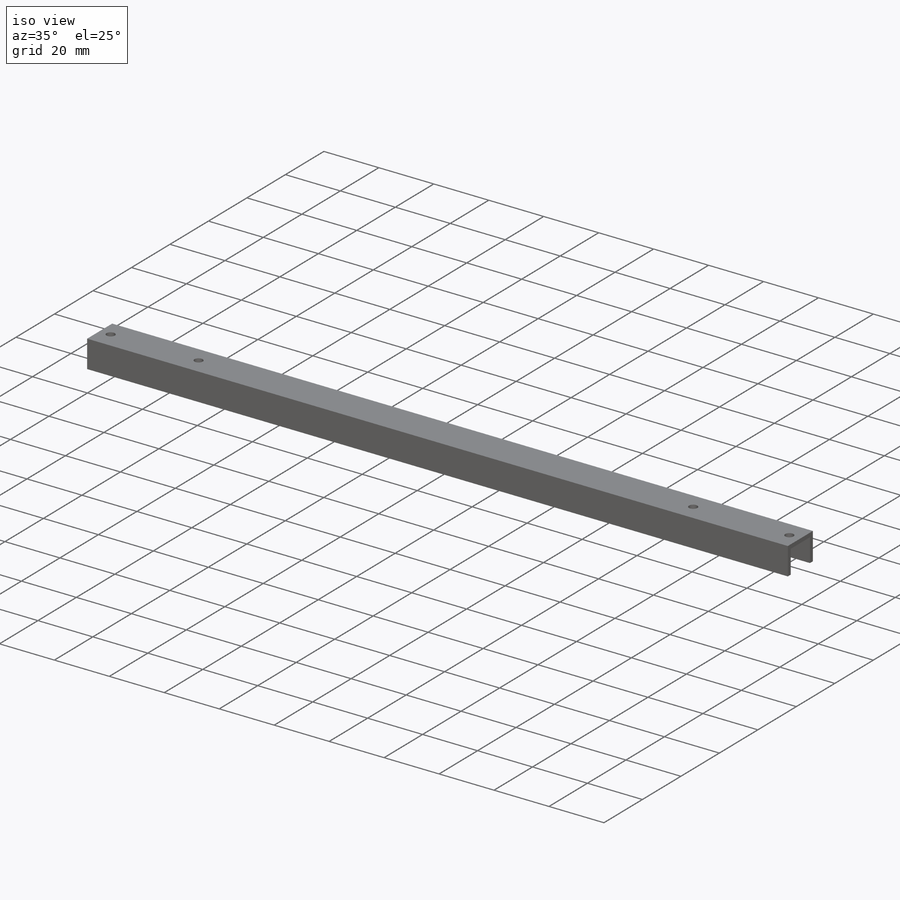
[diagram: iso view]
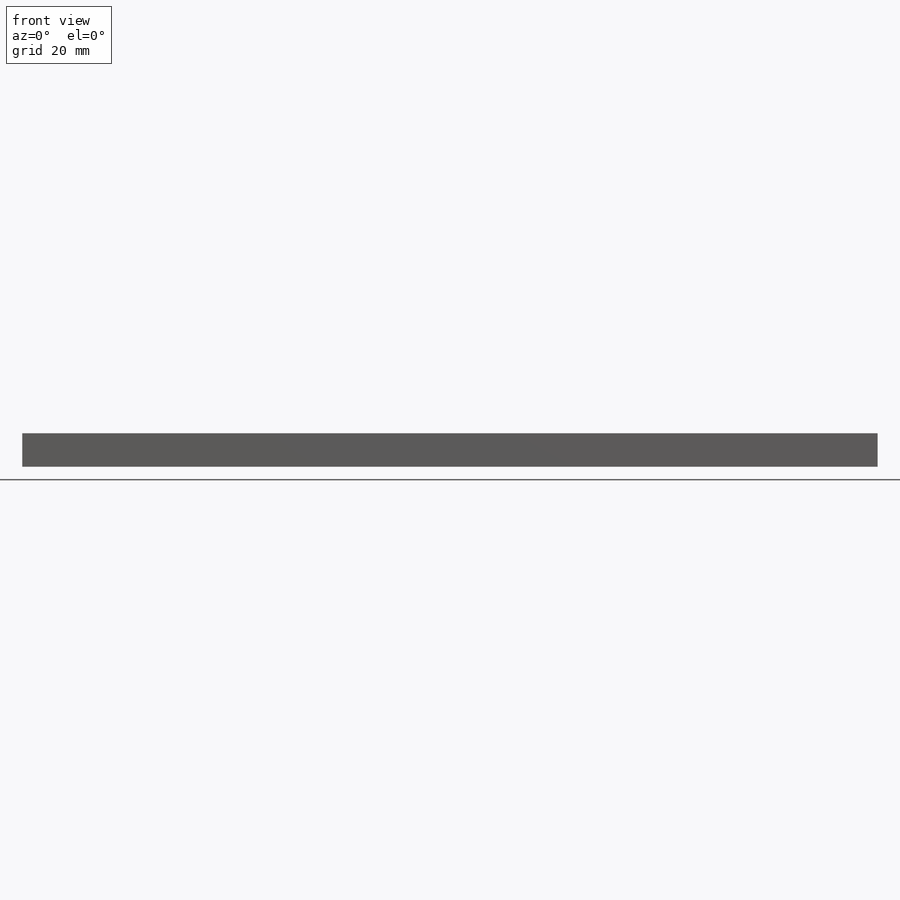
[diagram: front view]
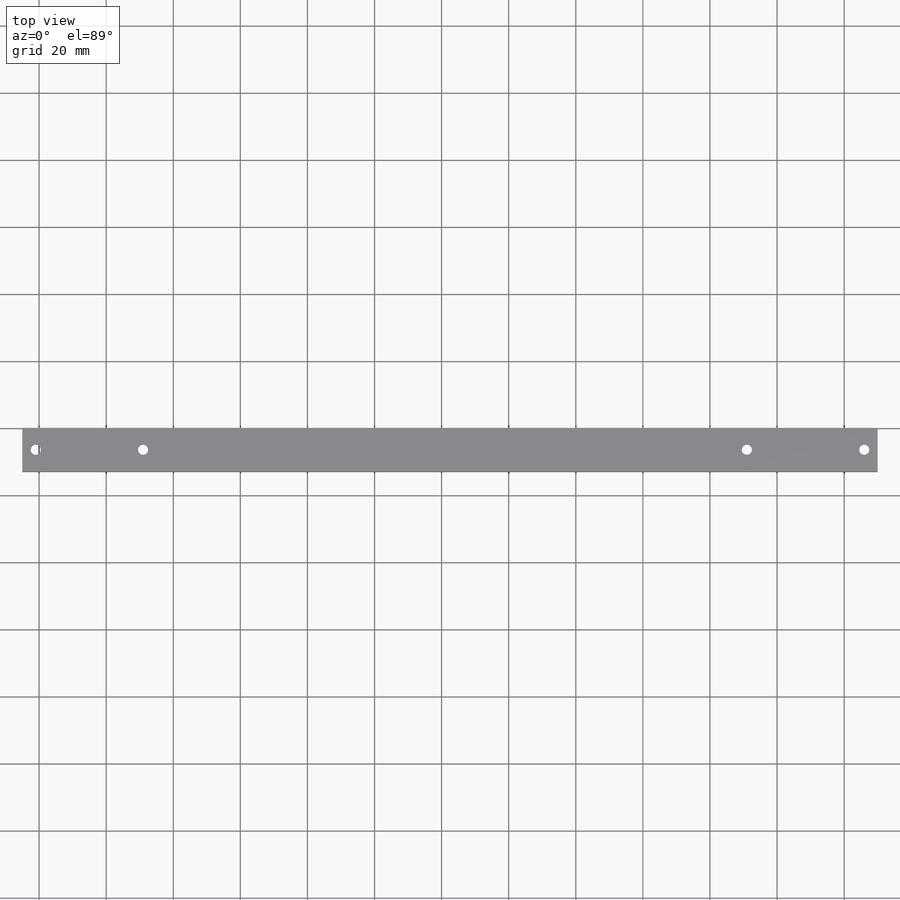
[diagram: top view]
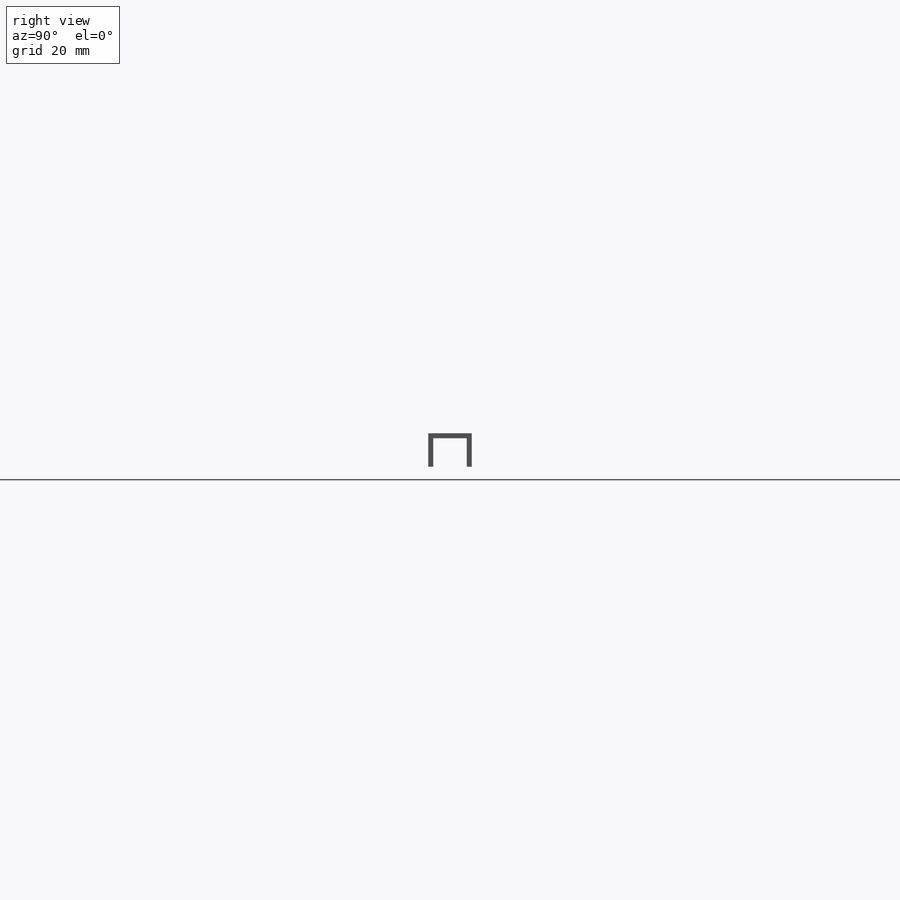
[diagram: right view]
SOLIDWORKS PART (.sldprt)
format: sldprt  version: not decoded by parser v0  size: 171,008 bytes
history: native  units: mm
features: sketch x4, plane x3, cut_extrude x3, material x1, extrude x1 (+9 scaffold rows collapsed)
feature tree (21):
  scaffold x9  (default folders/planes/origin — collapsed)
  material  "Matériau <non spécifié>"
  plane  "Plan de face"
  plane  "Plan de dessus"
  plane  "Plan de droite"
  sketch  "Esquisse1"  dims[D1=265.0mm D2=10.0mm]
  extrude  "Boss.-Extru.1"  Depth=13mm
  sketch  "Esquisse2"  dims[D1=1.5mm D2=1.5mm D3=1.5mm]
  cut_extrude  "Enlèv. mat.-Extru.1"  [1 undecoded]
  sketch  "Esquisse3"  dims[c1.D3=3.0mm c1.D4=3.0mm c1.D7=3.0mm c1.D8=3.0mm c1.D1=216.0mm c1.D2=251.0mm c1.D5=6.5mm c1.D6=6.5mm c1.D9=40.0mm c1.D10=4.0mm c1.D11=6.5mm c1.D12=6.5mm c2.D9=32.0mm c2.D13=~113.233468mm]
  cut_extrude  "Enlèv. mat.-Extru.2"  Depth=10mm
  sketch  "Esquisse4"  dims[D1=10.0mm]
  cut_extrude  "Enlèv. mat.-Extru.3"  [1 undecoded]
decode coverage: 6 of 8 modeling features carry decoded parameters
note: ~ marks probable driven/reference dimensions
note: 2 parameter values undecoded
note: suppression state not decoded; provenance and decode notes live in map.json
